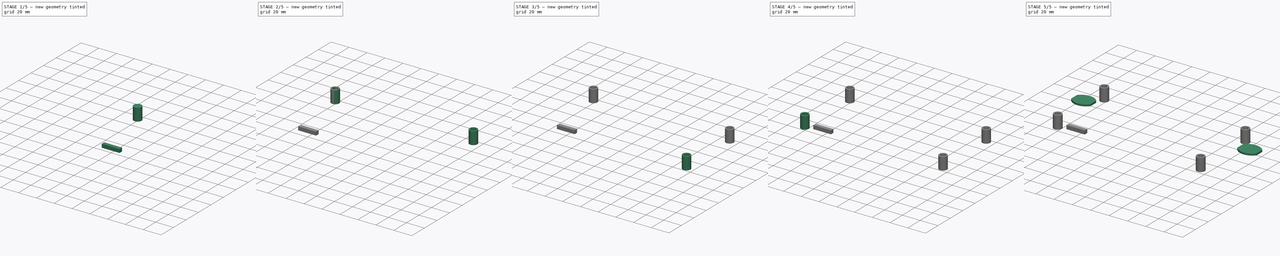
[diagram: build sequence overview — one tinted view per stage of 5, left to right]
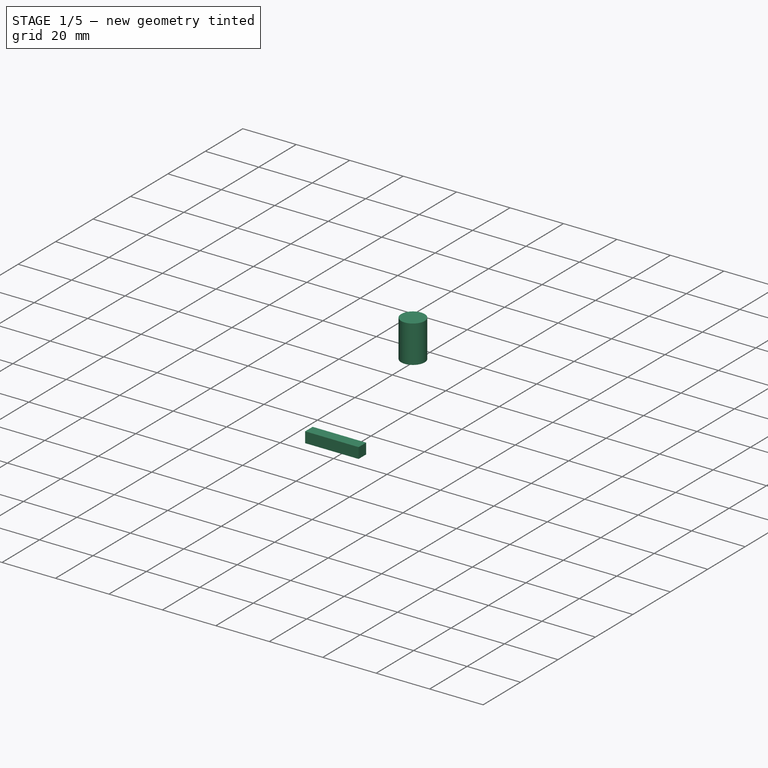
[diagram: stage 1 of 5 — iso view after this stage's code; geometry added in this stage tinted green]
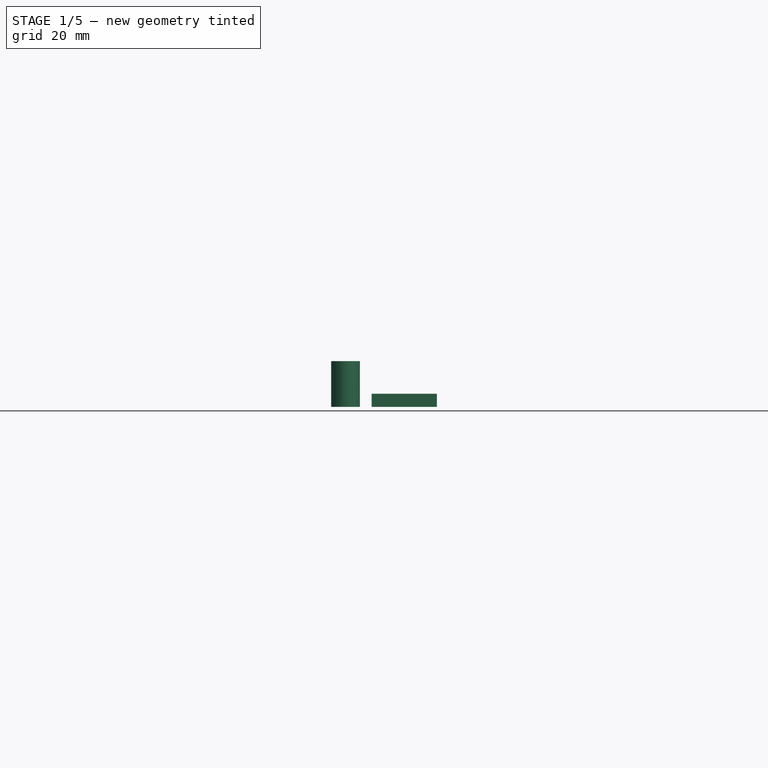
[diagram: stage 1 of 5 — front view after this stage's code; geometry added in this stage tinted green]
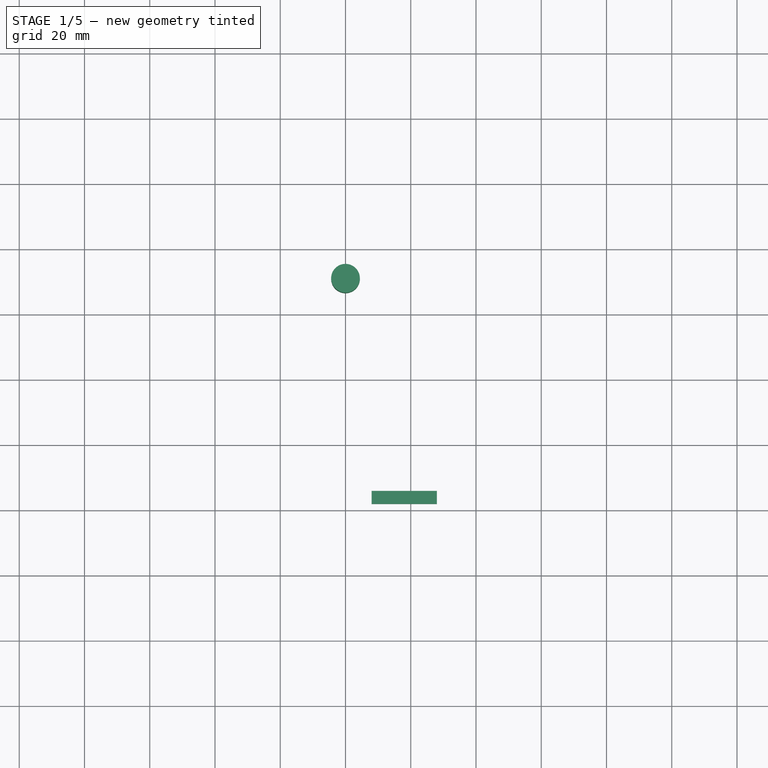
[diagram: stage 1 of 5 — top view after this stage's code; geometry added in this stage tinted green]
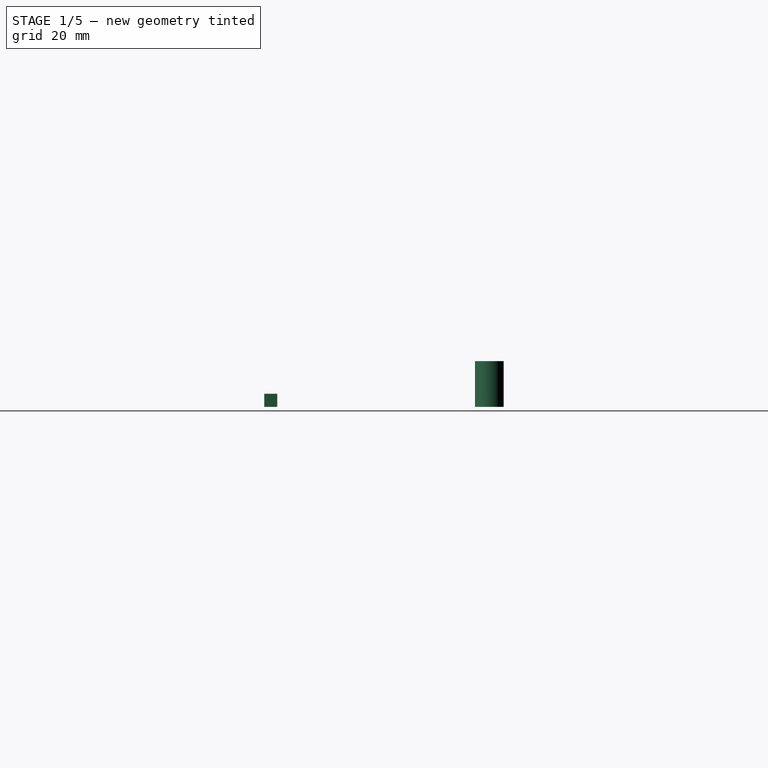
[diagram: stage 1 of 5 — right view after this stage's code; geometry added in this stage tinted green]
FCSTD DOCUMENT  (FreeCAD 0.16R6045 (Git))
Label: project_n_rev2
License: All rights reserved
LicenseURL: http://en.wikipedia.org/wiki/All_rights_reserved
objects: Part::Cylinder×8, Sketcher::SketchObject×5, Part::Cut×4, PartDesign::Pad×2, Part::MultiFuse×2, Part::Box×1
note: 24 computed .brp shape members not serialized (recipe doc carries the construction recipe); baked Part::Feature solids carry a one-line shape summary decoded from their .brp

FEATURE [Part::Cylinder] Cylinder003
  Angle = 360
  Height = 14
  Placement = pos=(0,71,0) rot=(0,0,1;0rad)
  Radius = 4.4
FEATURE [Part::Cylinder] Cylinder007
  Angle = 360
  Height = 12
  Placement = pos=(0,71,2) rot=(0,0,1;0rad)
  Radius = 3
FEATURE [Part::Box] Box001  label="Cube001"
  Height = 4
  Length = 20
  Placement = pos=(8,2,0) rot=(0,0,1;0rad)
  Width = 4
FEATURE [Sketcher::SketchObject] Sketch004
  Placement = pos=(0,0,0) rot=(1,0,0;3.14159rad)
  sketch-geometry (38):
    g0: LineSegment StartX=-43.3507 StartY=-6.8712 StartZ=0 EndX=-28.7131 EndY=-67.7959 EndZ=0
    g1: LineSegment StartX=199.163 StartY=-6.8694 StartZ=0 EndX=184.746 EndY=-68.0609 EndZ=0
    g2: ArcOfCircle CenterX=-37.936 CenterY=-5.56776 CenterZ=0 NormalX=0 NormalY=0 NormalZ=1 Radius=5.56941 StartAngle=1.57075 EndAngle=3.37782
    g3: ArcOfCircle CenterX=193.736 CenterY=-5.5753 CenterZ=0 NormalX=0 NormalY=0 NormalZ=1 Radius=5.57903 StartAngle=6.0491 EndAngle=7.85398
    g4: ArcOfCircle CenterX=78.2135 CenterY=90.7587 CenterZ=0 NormalX=0 NormalY=0 NormalZ=1 Radius=191.24 StartAngle=4.11906 EndAngle=4.197
    g5: LineSegment StartX=-4.40208 StartY=0 StartZ=0 EndX=-4.40208 EndY=-25 EndZ=0
    g6: LineSegment StartX=-4.40208 StartY=-25 StartZ=0 EndX=-6 EndY=-25 EndZ=0
    g7: LineSegment StartX=-6 StartY=-25 StartZ=0 EndX=-6 EndY=0.000261594 EndZ=0
    g8: LineSegment StartX=4.40547 StartY=0 StartZ=0 EndX=4.40547 EndY=-25 EndZ=0
    g9: LineSegment StartX=4.40547 StartY=-25 StartZ=0 EndX=6 EndY=-25 EndZ=0
    g10: LineSegment StartX=6 StartY=-25 StartZ=0 EndX=6 EndY=0.000143702 EndZ=0
    g11: LineSegment StartX=-6 StartY=0.000261594 StartZ=0 EndX=-37.9357 EndY=0.00165396 EndZ=0
    g12: LineSegment StartX=151.442 StartY=0 StartZ=0 EndX=151.442 EndY=-25 EndZ=0
    g13: LineSegment StartX=151.442 StartY=-25 StartZ=0 EndX=150 EndY=-25 EndZ=0
    g14: LineSegment StartX=150 StartY=-25 StartZ=0 EndX=150 EndY=0.00359255 EndZ=0
    g15: LineSegment StartX=160.216 StartY=0 StartZ=0 EndX=160.216 EndY=-25 EndZ=0
    g16: LineSegment StartX=160.216 StartY=-25 StartZ=0 EndX=161.882 EndY=-25 EndZ=0
    g17: LineSegment StartX=161.882 StartY=-25 StartZ=0 EndX=161.882 EndY=0.00373137 EndZ=0
    g18: LineSegment StartX=150 StartY=0.00359255 StartZ=0 EndX=6 EndY=0.000143702 EndZ=0
    g19: LineSegment StartX=161.882 StartY=0.00373137 StartZ=0 EndX=193.736 EndY=0.00373137 EndZ=0
    g20: LineSegment StartX=-14.2083 StartY=-76.6662 StartZ=0 EndX=14.3393 EndY=-55.4777 EndZ=0
    g21: LineSegment StartX=-16.0434 StartY=-75.64 StartZ=0 EndX=13.1986 EndY=-53.9388 EndZ=0
    g22: LineSegment StartX=13.1986 StartY=-53.9388 StartZ=0 EndX=14.3393 EndY=-55.4777 EndZ=0
    g23: LineSegment StartX=-5.18895 StartY=-81.3369 StartZ=0 EndX=19.6475 EndY=-62.3862 EndZ=0
    g24: LineSegment StartX=19.6475 StartY=-62.3862 StartZ=0 EndX=20.9006 EndY=-64.0769 EndZ=0
    g25: LineSegment StartX=20.9006 StartY=-64.0769 StartZ=0 EndX=-3.03647 EndY=-82.3636 EndZ=0
    g26: ArcOfCircle CenterX=78.2135 CenterY=90.7587 CenterZ=0 NormalX=0 NormalY=0 NormalZ=1 Radius=191.24 StartAngle=4.208 EndAngle=4.26111
    g27: ArcOfCircle CenterX=78.2135 CenterY=90.7587 CenterZ=0 NormalX=0 NormalY=0 NormalZ=1 Radius=191.24 StartAngle=4.27358 EndAngle=5.14801
    g28: LineSegment StartX=169.291 StartY=-77.4014 StartZ=0 EndX=142.294 EndY=-54.4443 EndZ=0
    g29: LineSegment StartX=142.294 StartY=-54.4443 StartZ=0 EndX=143.278 EndY=-53.2272 EndZ=0
    g30: LineSegment StartX=143.278 StartY=-53.2272 StartZ=0 EndX=170.76 EndY=-76.5975 EndZ=0
    g31: LineSegment StartX=160.7 StartY=-81.7776 StartZ=0 EndX=136.551 EndY=-61.2415 EndZ=0
    g32: LineSegment StartX=136.551 StartY=-61.2415 StartZ=0 EndX=135.384 EndY=-62.6144 EndZ=0
    g33: LineSegment StartX=135.384 StartY=-62.6144 StartZ=0 EndX=158.911 EndY=-82.6217 EndZ=0
    g34: ArcOfCircle CenterX=78.2135 CenterY=90.7587 CenterZ=0 NormalX=0 NormalY=0 NormalZ=1 Radius=191.24 StartAngle=5.15835 EndAngle=5.20877
    g35: ArcOfCircle CenterX=78.2135 CenterY=90.7587 CenterZ=0 NormalX=0 NormalY=0 NormalZ=1 Radius=191.24 StartAngle=5.21752 EndAngle=5.30323
    g36: LineSegment StartX=151.442 StartY=0 StartZ=0 EndX=160.216 EndY=0 EndZ=0
    g37: LineSegment StartX=-4.40208 StartY=0 StartZ=0 EndX=4.40547 EndY=0 EndZ=0
  constraints (47):
    c: Coincident(g4,g0)
    c: Coincident(g35,g1)
    c: Coincident(g5,g6)
    c: Coincident(g6,g7)
    c: Coincident(g8,g9)
    c: Coincident(g9,g10)
    c: Coincident(g12,g13)
    c: Coincident(g13,g14)
    c: Coincident(g15,g16)
    c: Coincident(g16,g17)
    c: Coincident(g22,g20)
    c: Coincident(g24,g23)
    c: Coincident(g25,g24)
    c: Coincident(g21,g22)
    c: PointOnObject(g23,g4)
    c: PointOnObject(g25,g4)
    c: Coincident(g4,g21)
    c: Coincident(g26,g20)
    c: Coincident(g4,g26)
    c: Coincident(g26,g27)
    c: PointOnObject(g28,g27)
    c: Coincident(g29,g28)
    c: Coincident(g30,g29)
    c: PointOnObject(g30,g27)
    c: Coincident(g32,g31)
    c: Coincident(g27,g33)
    c: Coincident(g34,g31)
    c: Coincident(g27,g34)
    c: Coincident(g34,g35)
    c: Coincident(g10,g18)
    c: Coincident(g17,g19)
    c: Coincident(g32,g33)
    c: Coincident(g7,g11)
    c: Coincident(g18,g14)
    c: Coincident(g23,g26)
    c: Coincident(g25,g27)
    c: Coincident(g28,g34)
    c: Coincident(g30,g35)
    c: Coincident(g0,g2)
    c: Coincident(g3,g1)
    c: Coincident(g2,g11)
    c: Coincident(g3,g19)
    c: Coincident(g36,g12)
    c: Coincident(g36,g15)
    c: Coincident(g37,g5)
    c: Coincident(g37,g8)
    c: Horizontal(g37)
FEATURE [Sketcher::SketchObject] Sketch005
  Placement = pos=(0,0,0) rot=(1,0,0;3.14159rad)
  sketch-geometry (72):
    g0: LineSegment StartX=-40.3288 StartY=-7.10703 StartZ=0 EndX=-35.0657 EndY=-28.4659 EndZ=0
    g1: LineSegment StartX=196.107 StartY=-6.97591 StartZ=0 EndX=191.107 EndY=-28.465 EndZ=0
    g2: ArcOfCircle CenterX=-36.5908 CenterY=-6.71486 CenterZ=0 NormalX=0 NormalY=0 NormalZ=1 Radius=3.75849 StartAngle=1.95648 EndAngle=3.24613
    g3: ArcOfCircle CenterX=192.413 CenterY=-6.58648 CenterZ=0 NormalX=0 NormalY=0 NormalZ=1 Radius=3.7143 StartAngle=6.17815 EndAngle=7.68726
    g4: ArcOfCircle CenterX=81.0795 CenterY=91.0792 CenterZ=0 NormalX=0 NormalY=0 NormalZ=1 Radius=190.004 StartAngle=4.11487 EndAngle=4.18002
    g5: LineSegment StartX=-9 StartY=-28.4659 StartZ=0 EndX=-9 EndY=-3.31055 EndZ=0
    g6: LineSegment StartX=9 StartY=-28.4589 StartZ=0 EndX=9 EndY=-3 EndZ=0
    g7: LineSegment StartX=-9 StartY=-3.31055 StartZ=0 EndX=-38.0047 EndY=-3.23246 EndZ=0
    g8: LineSegment StartX=147 StartY=-28.4589 StartZ=0 EndX=147 EndY=-3 EndZ=0
    g9: LineSegment StartX=165 StartY=-28.465 StartZ=0 EndX=165.046 EndY=-3 EndZ=0
    g10: LineSegment StartX=147 StartY=-3 StartZ=0 EndX=9 EndY=-3 EndZ=0
    g11: LineSegment StartX=165.046 StartY=-3 StartZ=0 EndX=193.03 EndY=-2.92369 EndZ=0
    g12: LineSegment StartX=-15.3622 StartY=-72.6298 StartZ=0 EndX=10.0002 EndY=-53.5322 EndZ=0
    g13: LineSegment StartX=19.2059 StartY=-70.674 StartZ=0 EndX=4.63731 EndY=-82.8698 EndZ=0
    g14: ArcOfCircle CenterX=77.8731 CenterY=91.3643 CenterZ=0 NormalX=0 NormalY=0 NormalZ=1 Radius=189 StartAngle=4.31448 EndAngle=5.12279
    g15: LineSegment StartX=148.633 StartY=-54.7292 StartZ=0 EndX=170.006 EndY=-73.6583 EndZ=0
    g16: LineSegment StartX=139.531 StartY=-70.674 StartZ=0 EndX=153.279 EndY=-81.9415 EndZ=0
    g17: ArcOfCircle CenterX=80.6539 CenterY=92.1113 CenterZ=0 NormalX=0 NormalY=0 NormalZ=1 Radius=188.317 StartAngle=5.20676 EndAngle=5.28236
    g18: LineSegment StartX=-43.3507 StartY=-6.8712 StartZ=0 EndX=-28.7131 EndY=-67.7959 EndZ=0
    g19: LineSegment StartX=199.163 StartY=-6.8694 StartZ=0 EndX=184.746 EndY=-68.0609 EndZ=0
    g20: ArcOfCircle CenterX=-37.936 CenterY=-5.56776 CenterZ=0 NormalX=0 NormalY=0 NormalZ=1 Radius=5.56941 StartAngle=1.57075 EndAngle=3.37782
    g21: ArcOfCircle CenterX=193.736 CenterY=-5.5753 CenterZ=0 NormalX=0 NormalY=0 NormalZ=1 Radius=5.57903 StartAngle=6.0491 EndAngle=7.85398
    g22: ArcOfCircle CenterX=78.2135 CenterY=90.7587 CenterZ=0 NormalX=0 NormalY=0 NormalZ=1 Radius=191.24 StartAngle=4.11906 EndAngle=4.197
    g23: LineSegment StartX=-4.40208 StartY=0 StartZ=0 EndX=-4.40208 EndY=-25 EndZ=0
    g24: LineSegment StartX=-4.40208 StartY=-25 StartZ=0 EndX=-6 EndY=-25 EndZ=0
    g25: LineSegment StartX=-6 StartY=-25 StartZ=0 EndX=-6 EndY=0.000261594 EndZ=0
    g26: LineSegment StartX=4.40547 StartY=0 StartZ=0 EndX=4.40547 EndY=-25 EndZ=0
    g27: LineSegment StartX=4.40547 StartY=-25 StartZ=0 EndX=6 EndY=-25 EndZ=0
    g28: LineSegment StartX=6 StartY=-25 StartZ=0 EndX=6 EndY=0.000143702 EndZ=0
    g29: LineSegment StartX=-6 StartY=0.000261594 StartZ=0 EndX=-37.9357 EndY=0.00165396 EndZ=0
    g30: LineSegment StartX=151.442 StartY=0 StartZ=0 EndX=151.442 EndY=-25 EndZ=0
    g31: LineSegment StartX=151.442 StartY=-25 StartZ=0 EndX=150 EndY=-25 EndZ=0
    g32: LineSegment StartX=150 StartY=-25 StartZ=0 EndX=150 EndY=0.00359255 EndZ=0
    g33: LineSegment StartX=160.216 StartY=0 StartZ=0 EndX=160.216 EndY=-25 EndZ=0
    g34: LineSegment StartX=160.216 StartY=-25 StartZ=0 EndX=161.882 EndY=-25 EndZ=0
    g35: LineSegment StartX=161.882 StartY=-25 StartZ=0 EndX=161.882 EndY=0.00373137 EndZ=0
    g36: LineSegment StartX=150 StartY=0.00359255 StartZ=0 EndX=6 EndY=0.000143702 EndZ=0
    g37: LineSegment StartX=161.882 StartY=0.00373137 StartZ=0 EndX=193.736 EndY=0.00373137 EndZ=0
    g38: LineSegment StartX=-14.2083 StartY=-76.6662 StartZ=0 EndX=14.3393 EndY=-55.4777 EndZ=0
    g39: LineSegment StartX=-16.0434 StartY=-75.64 StartZ=0 EndX=13.1986 EndY=-53.9388 EndZ=0
    g40: LineSegment StartX=13.1986 StartY=-53.9388 StartZ=0 EndX=14.3393 EndY=-55.4777 EndZ=0
    g41: LineSegment StartX=-5.18895 StartY=-81.3369 StartZ=0 EndX=19.6475 EndY=-62.3862 EndZ=0
    g42: LineSegment StartX=19.6475 StartY=-62.3862 StartZ=0 EndX=20.9006 EndY=-64.0769 EndZ=0
    g43: LineSegment StartX=20.9006 StartY=-64.0769 StartZ=0 EndX=-3.03647 EndY=-82.3636 EndZ=0
    g44: ArcOfCircle CenterX=78.2135 CenterY=90.7587 CenterZ=0 NormalX=0 NormalY=0 NormalZ=1 Radius=191.24 StartAngle=4.208 EndAngle=4.26111
    g45: ArcOfCircle CenterX=78.2135 CenterY=90.7587 CenterZ=0 NormalX=0 NormalY=0 NormalZ=1 Radius=191.24 StartAngle=4.27358 EndAngle=5.14801
    g46: LineSegment StartX=169.291 StartY=-77.4014 StartZ=0 EndX=142.294 EndY=-54.4443 EndZ=0
    g47: LineSegment StartX=142.294 StartY=-54.4443 StartZ=0 EndX=143.278 EndY=-53.2272 EndZ=0
    g48: LineSegment StartX=143.278 StartY=-53.2272 StartZ=0 EndX=170.76 EndY=-76.5975 EndZ=0
    g49: LineSegment StartX=160.7 StartY=-81.7776 StartZ=0 EndX=136.551 EndY=-61.2415 EndZ=0
    g50: LineSegment StartX=136.551 StartY=-61.2415 StartZ=0 EndX=135.384 EndY=-62.6144 EndZ=0
    g51: LineSegment StartX=135.384 StartY=-62.6144 StartZ=0 EndX=158.911 EndY=-82.6217 EndZ=0
    g52: ArcOfCircle CenterX=78.2135 CenterY=90.7587 CenterZ=0 NormalX=0 NormalY=0 NormalZ=1 Radius=191.24 StartAngle=5.15835 EndAngle=5.20877
    g53: ArcOfCircle CenterX=78.2135 CenterY=90.7587 CenterZ=0 NormalX=0 NormalY=0 NormalZ=1 Radius=191.24 StartAngle=5.21752 EndAngle=5.30323
    g54: LineSegment StartX=151.442 StartY=0 StartZ=0 EndX=160.216 EndY=0 EndZ=0
    g55: LineSegment StartX=-4.40208 StartY=0 StartZ=0 EndX=4.40547 EndY=0 EndZ=0
    g56: LineSegment StartX=143.013 StartY=-47.9549 StartZ=0 EndX=127.338 EndY=-64.7036 EndZ=0
    g57: LineSegment StartX=15.7428 StartY=-48.8542 StartZ=0 EndX=29.5247 EndY=-64.7036 EndZ=0
    g58: LineSegment StartX=19.2059 StartY=-70.674 StartZ=0 EndX=139.531 EndY=-70.674 EndZ=0
    g59: LineSegment StartX=29.5247 StartY=-64.7036 StartZ=0 EndX=127.338 EndY=-64.7036 EndZ=0
    g60: LineSegment StartX=-9 StartY=-28.4659 StartZ=0 EndX=-35.0657 EndY=-28.4659 EndZ=0
    g61: LineSegment StartX=9 StartY=-28.4589 StartZ=0 EndX=147 EndY=-28.4589 EndZ=0
    g62: LineSegment StartX=165 StartY=-28.465 StartZ=0 EndX=191.107 EndY=-28.465 EndZ=0
    g63: LineSegment StartX=-33.6674 StartY=-34.1409 StartZ=0 EndX=10.0002 EndY=-34.1409 EndZ=0
    g64: LineSegment StartX=10.0002 StartY=-34.1409 StartZ=0 EndX=10.0002 EndY=-53.5322 EndZ=0
    g65: LineSegment StartX=15.7428 StartY=-34.1979 StartZ=0 EndX=15.7428 EndY=-48.8542 EndZ=0
    g66: LineSegment StartX=143.013 StartY=-47.9549 StartZ=0 EndX=143.013 EndY=-34.1409 EndZ=0
    g67: LineSegment StartX=148.633 StartY=-34.1409 StartZ=0 EndX=148.633 EndY=-54.7292 EndZ=0
    g68: LineSegment StartX=15.7428 StartY=-34.1409 StartZ=0 EndX=143.013 EndY=-34.1409 EndZ=0
    g69: LineSegment StartX=148.633 StartY=-34.1409 StartZ=0 EndX=189.786 EndY=-34.1409 EndZ=0
    g70: LineSegment StartX=-33.6674 StartY=-34.1409 StartZ=0 EndX=-25.8162 EndY=-66.0035 EndZ=0
    g71: LineSegment StartX=189.786 StartY=-34.1409 StartZ=0 EndX=182.271 EndY=-66.4365 EndZ=0
  constraints (95):
    c: Coincident(g4,g70)
    c: Coincident(g17,g71)
    c: PointOnObject(g13,g4)
    c: Coincident(g4,g12)
    c: PointOnObject(g15,g14)
    c: Coincident(g14,g16)
    c: Coincident(g6,g10)
    c: Coincident(g9,g11)
    c: Coincident(g5,g7)
    c: Coincident(g10,g8)
    c: Coincident(g13,g14)
    c: Coincident(g15,g17)
    c: Coincident(g0,g2)
    c: Coincident(g3,g1)
    c: Coincident(g2,g7)
    c: Coincident(g3,g11)
    c: Coincident(g22,g18)
    c: Coincident(g53,g19)
    c: Coincident(g23,g24)
    c: Coincident(g24,g25)
    c: Coincident(g26,g27)
    c: Coincident(g27,g28)
    c: Coincident(g30,g31)
    c: Coincident(g31,g32)
    c: Coincident(g33,g34)
    c: Coincident(g34,g35)
    c: Coincident(g40,g38)
    c: Coincident(g42,g41)
    c: Coincident(g43,g42)
    c: Coincident(g39,g40)
    c: PointOnObject(g41,g22)
    c: PointOnObject(g43,g22)
    c: Coincident(g22,g39)
    c: Coincident(g44,g38)
    c: Coincident(g22,g44)
    c: Coincident(g44,g45)
    c: PointOnObject(g46,g45)
    c: Coincident(g47,g46)
    c: Coincident(g48,g47)
    c: PointOnObject(g48,g45)
    c: Coincident(g50,g49)
    c: Coincident(g45,g51)
    c: Coincident(g52,g49)
    c: Coincident(g45,g52)
    c: Coincident(g52,g53)
    c: Coincident(g28,g36)
    c: Coincident(g35,g37)
    c: Coincident(g50,g51)
    c: Coincident(g25,g29)
    c: Coincident(g36,g32)
    c: Coincident(g41,g44)
    c: Coincident(g43,g45)
    c: Coincident(g46,g52)
    c: Coincident(g48,g53)
    c: Coincident(g18,g20)
    c: Coincident(g21,g19)
    c: Coincident(g20,g29)
    c: Coincident(g21,g37)
    c: Coincident(g54,g30)
    c: Coincident(g54,g33)
    c: Coincident(g55,g23)
    c: Coincident(g55,g26)
    c: Horizontal(g55)
    c: Horizontal(g58)
    c: Coincident(g59,g57)
    c: Coincident(g59,g56)
    c: Horizontal(g59)
    c: Coincident(g13,g58)
    c: Coincident(g16,g58)
    c: Coincident(g60,g5)
    c: Horizontal(g60)
    c: Coincident(g61,g6)
    c: Coincident(g61,g8)
    c: Horizontal(g61)
    c: Coincident(g62,g9)
    c: Horizontal(g62)
    c: Horizontal(g63)
    c: Vertical(g64)
    c: Coincident(g65,g57)
    c: Vertical(g65)
    c: Coincident(g66,g56)
    c: Vertical(g67)
    c: Coincident(g63,g64)
    c: Tangent(g63,g68)
    c: Coincident(g12,g64)
    c: Tangent(g68,g69)
    c: Coincident(g15,g67)
    c: Coincident(g0,g60)
    c: Coincident(g70,g63)
    c: Coincident(g1,g62)
    c: Coincident(g71,g69)
    c: Coincident(g67,g69)
    c: Coincident(g65,g68)
    c: Coincident(g66,g68)
    c: Coincident(g66,g56)
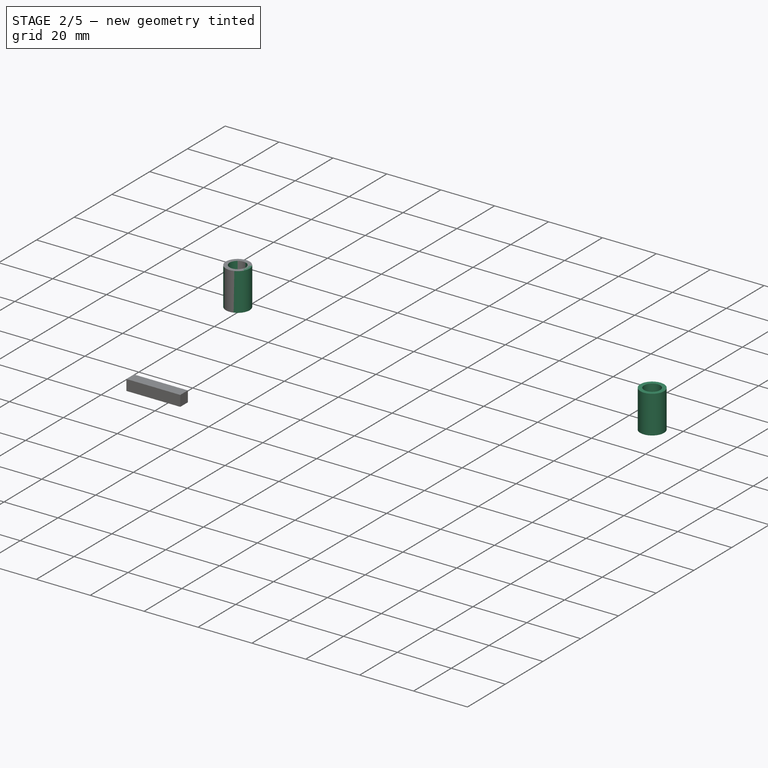
[diagram: stage 2 of 5 — iso view after this stage's code; geometry added in this stage tinted green]
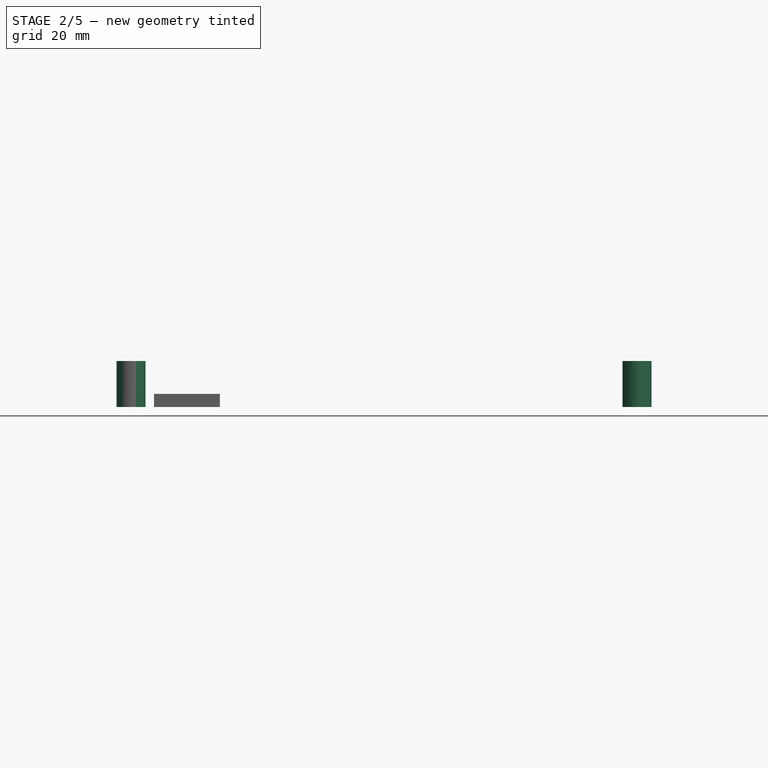
[diagram: stage 2 of 5 — front view after this stage's code; geometry added in this stage tinted green]
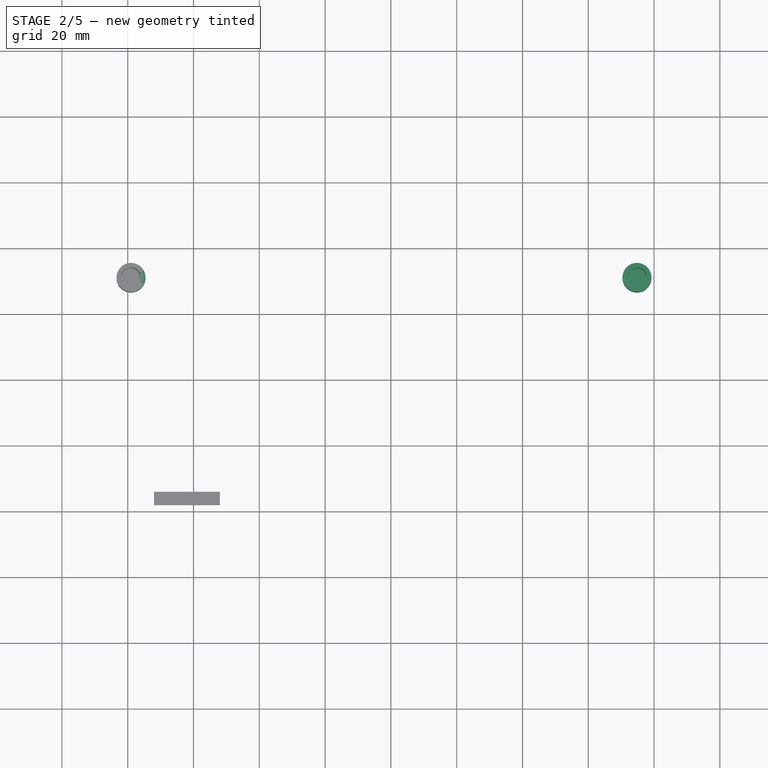
[diagram: stage 2 of 5 — top view after this stage's code; geometry added in this stage tinted green]
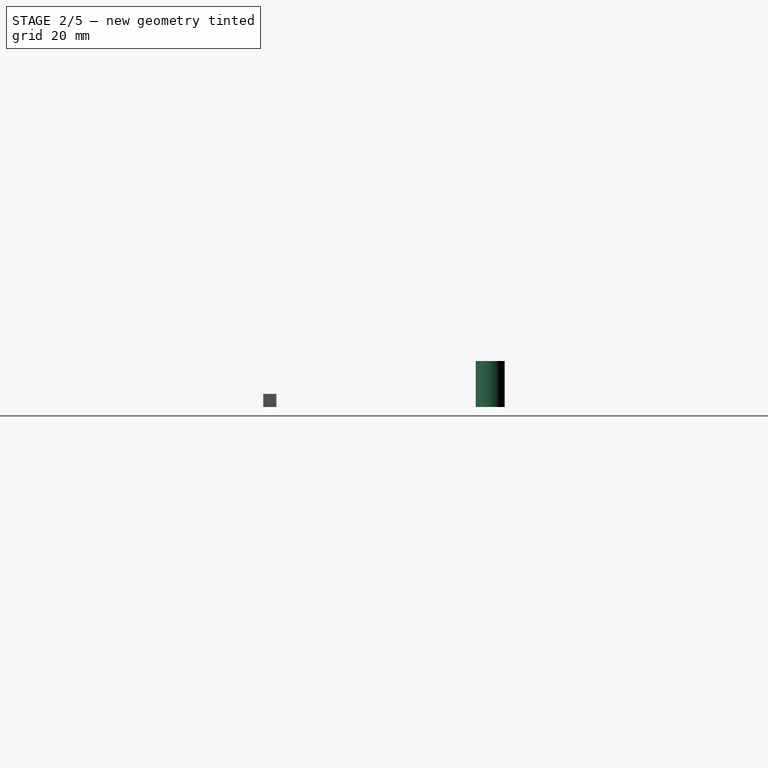
[diagram: stage 2 of 5 — right view after this stage's code; geometry added in this stage tinted green]
FEATURE [Part::Cylinder] Cylinder002
  Angle = 360
  Height = 14
  Placement = pos=(155.8,71,0) rot=(0,0,1;0rad)
  Radius = 4.4
FEATURE [Part::Cylinder] Cylinder006
  Angle = 360
  Height = 12
  Placement = pos=(155.8,71,2) rot=(0,0,1;0rad)
  Radius = 3
FEATURE [Part::Cut] Cut002
  Base = -> Cylinder002
  Placement = pos=(-1,0,0) rot=(0,0,1;0rad)
  Tool = -> Cylinder006
FEATURE [Part::Cut] Cut003
  Base = -> Cylinder003
  Placement = pos=(1,0,0) rot=(0,0,1;0rad)
  Tool = -> Cylinder007
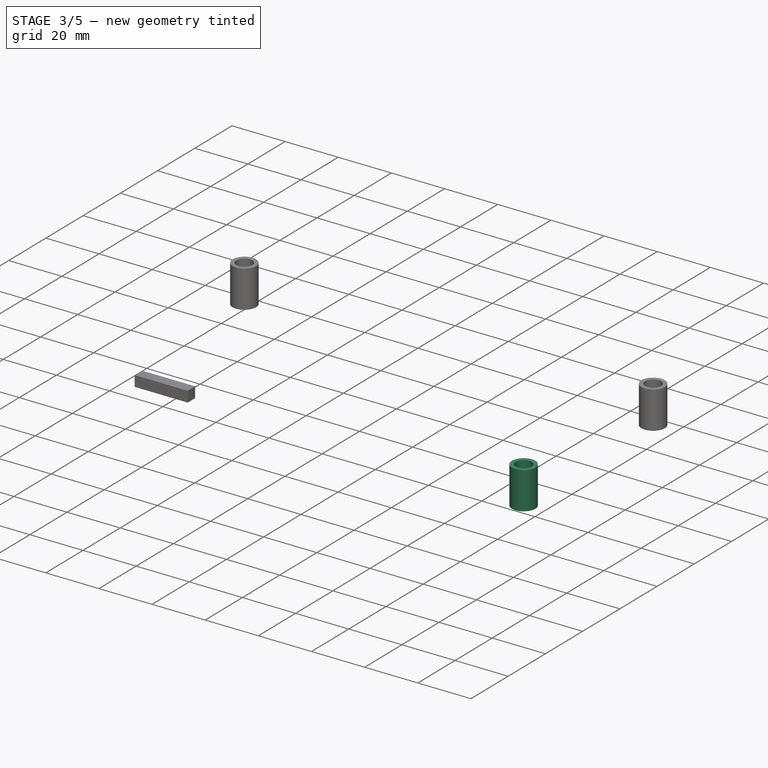
[diagram: stage 3 of 5 — iso view after this stage's code; geometry added in this stage tinted green]
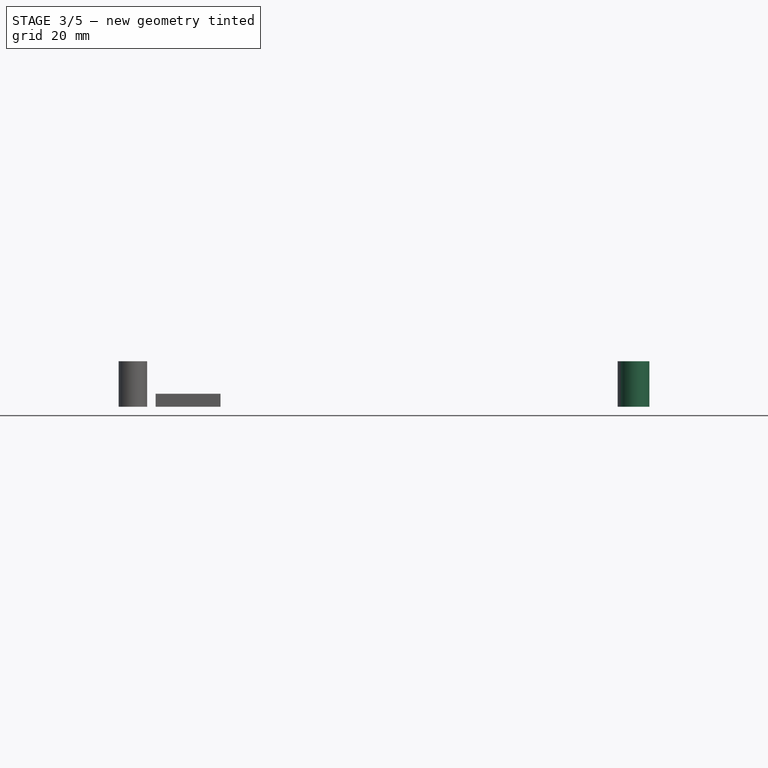
[diagram: stage 3 of 5 — front view after this stage's code; geometry added in this stage tinted green]
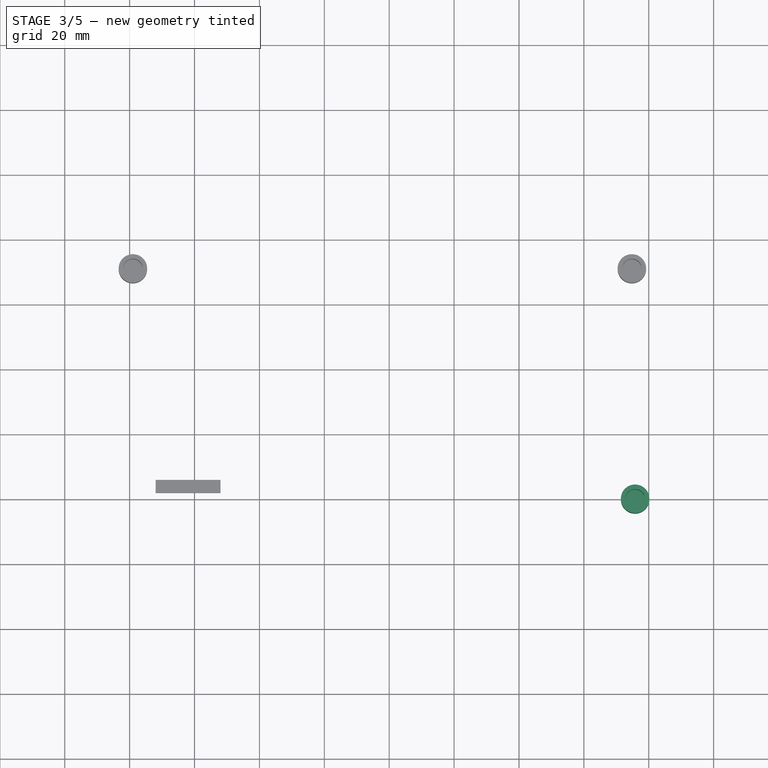
[diagram: stage 3 of 5 — top view after this stage's code; geometry added in this stage tinted green]
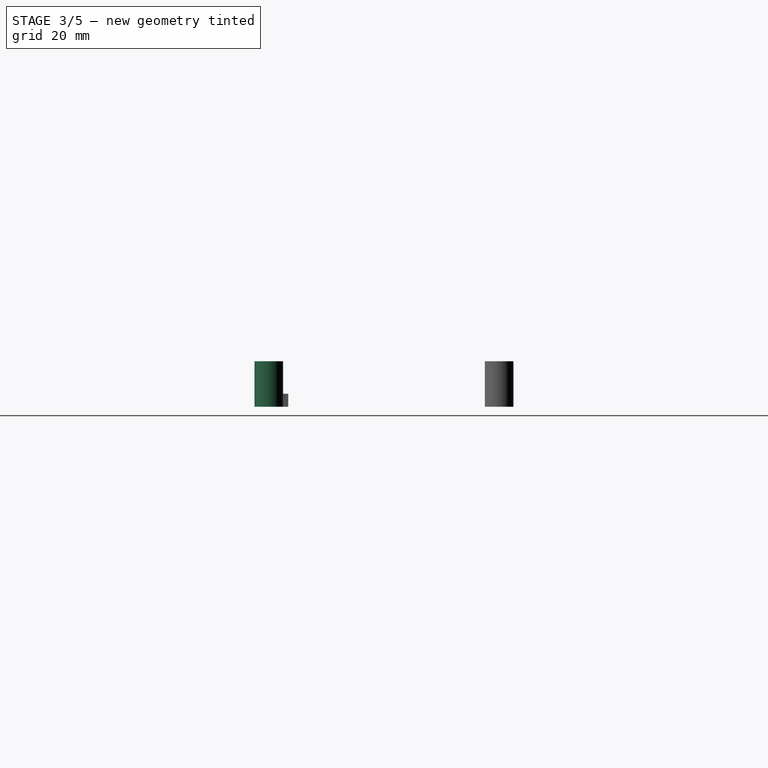
[diagram: stage 3 of 5 — right view after this stage's code; geometry added in this stage tinted green]
FEATURE [Part::Cylinder] Cylinder001
  Angle = 360
  Height = 14
  Placement = pos=(155.8,0,0) rot=(0,0,1;0rad)
  Radius = 4.4
FEATURE [Part::Cylinder] Cylinder005
  Angle = 360
  Height = 12
  Placement = pos=(155.8,0,2) rot=(0,0,1;0rad)
  Radius = 3
FEATURE [Part::Cut] Cut001
  Base = -> Cylinder001
  Tool = -> Cylinder005
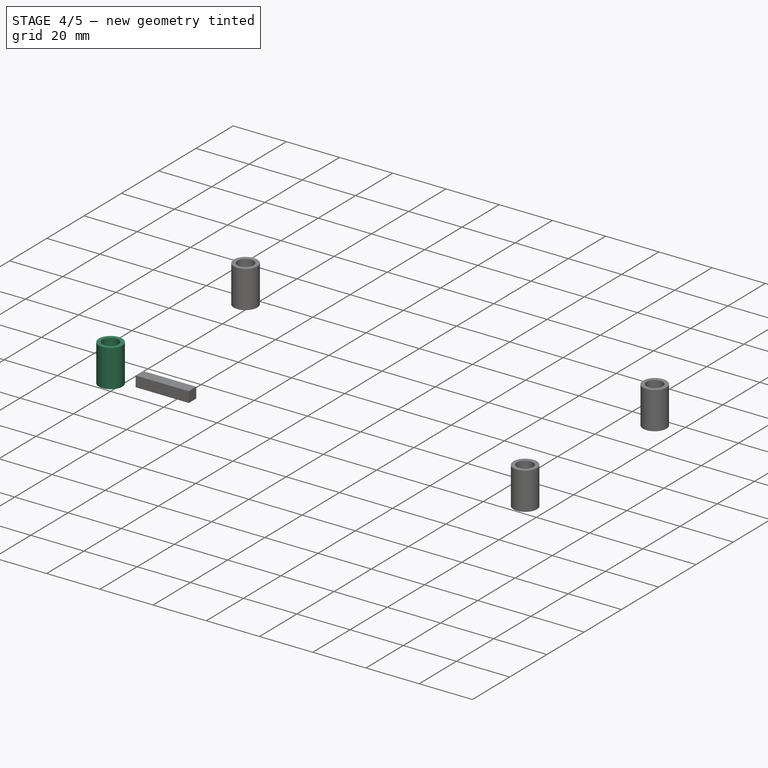
[diagram: stage 4 of 5 — iso view after this stage's code; geometry added in this stage tinted green]
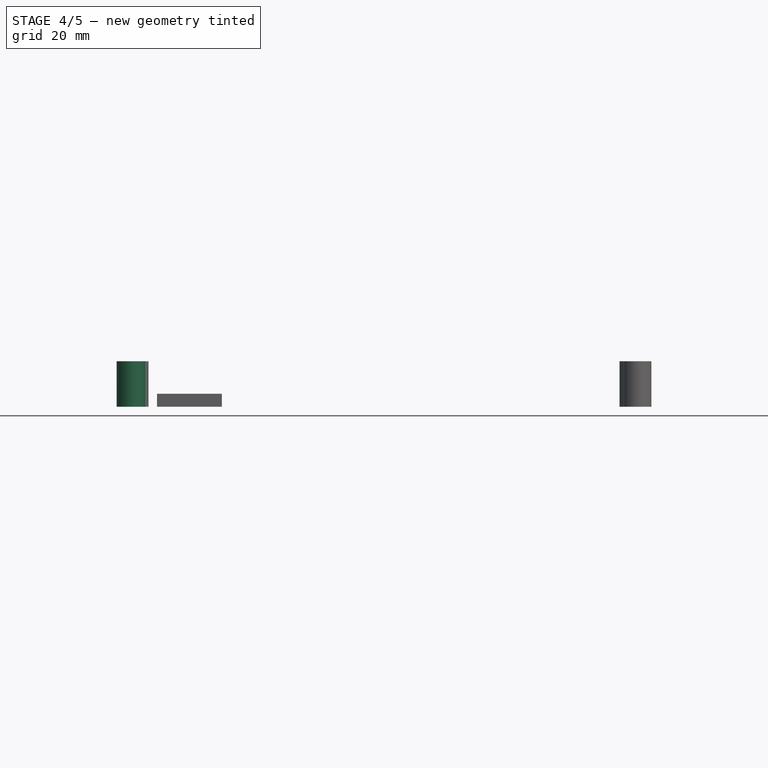
[diagram: stage 4 of 5 — front view after this stage's code; geometry added in this stage tinted green]
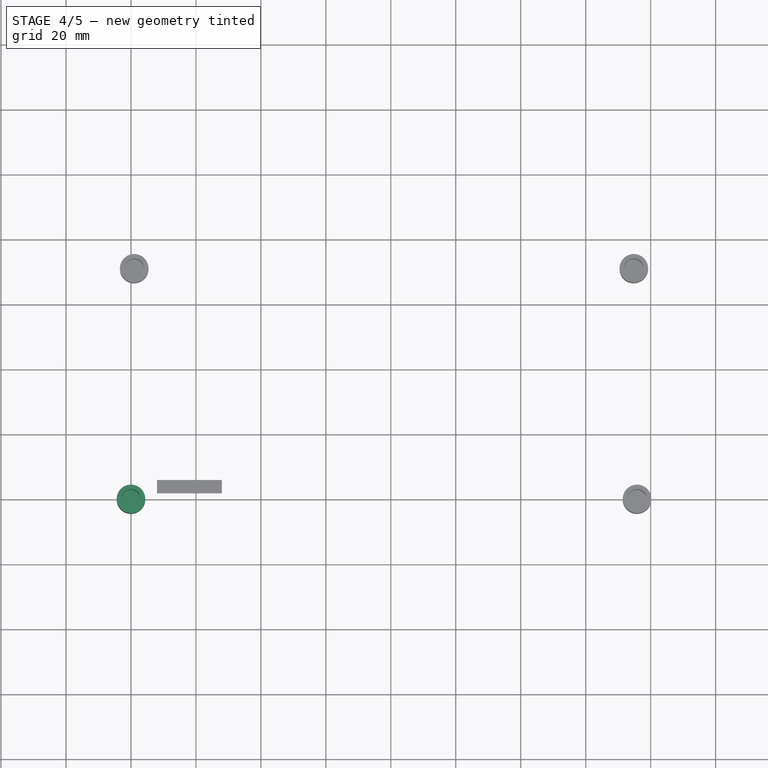
[diagram: stage 4 of 5 — top view after this stage's code; geometry added in this stage tinted green]
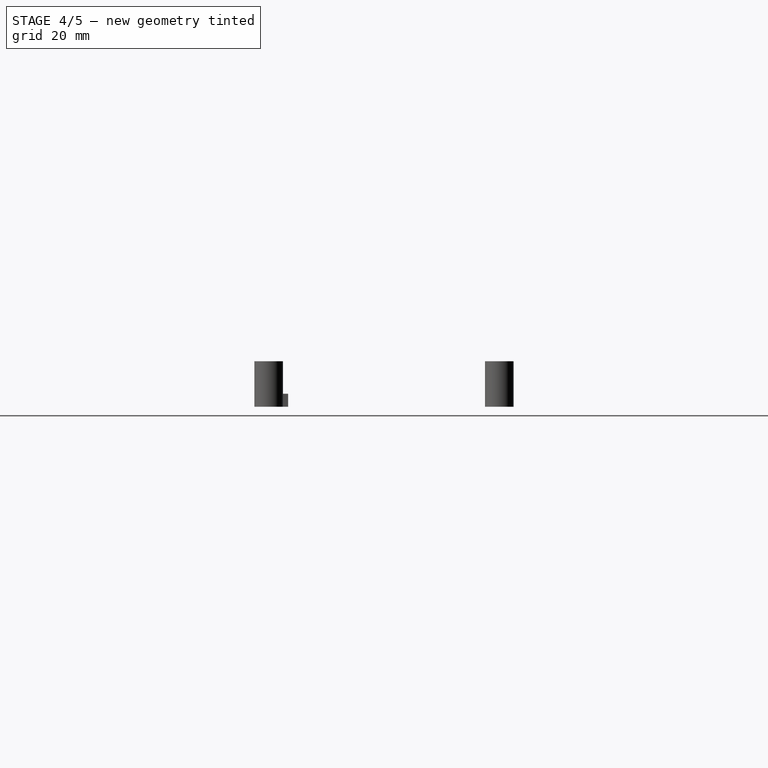
[diagram: stage 4 of 5 — right view after this stage's code; geometry added in this stage tinted green]
FEATURE [Part::Cylinder] Cylinder
  Angle = 360
  Height = 14
  Radius = 4.4
FEATURE [Part::Cylinder] Cylinder004
  Angle = 360
  Height = 12
  Placement = pos=(0,0,2) rot=(0,0,1;0rad)
  Radius = 3
FEATURE [Part::Cut] Cut
  Base = -> Cylinder
  Tool = -> Cylinder004
FEATURE [Part::MultiFuse] Fusion001
  Shapes = -> [Cut,Cut001,Cut002,Cut003]
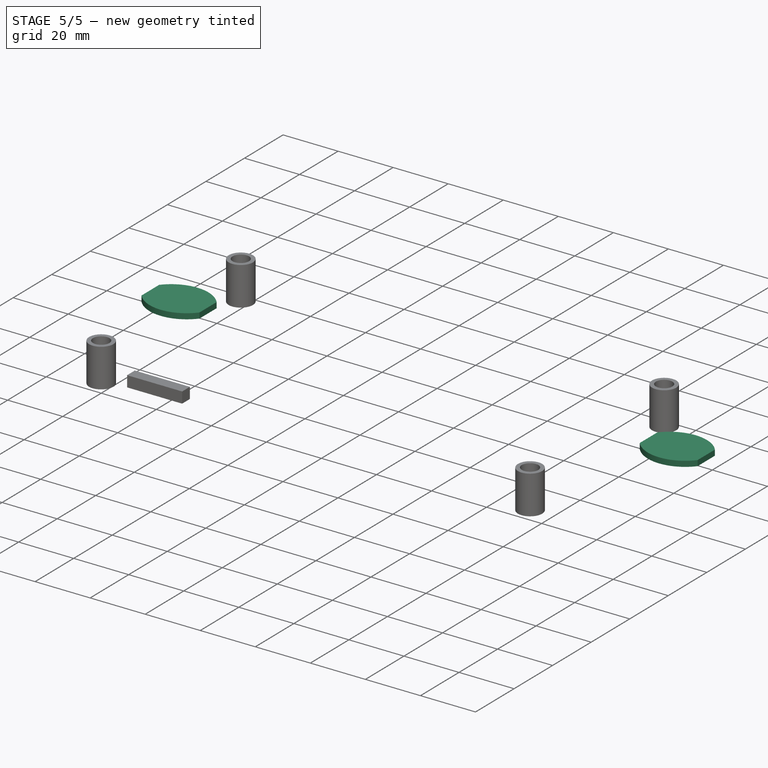
[diagram: stage 5 of 5 — iso view after this stage's code; geometry added in this stage tinted green]
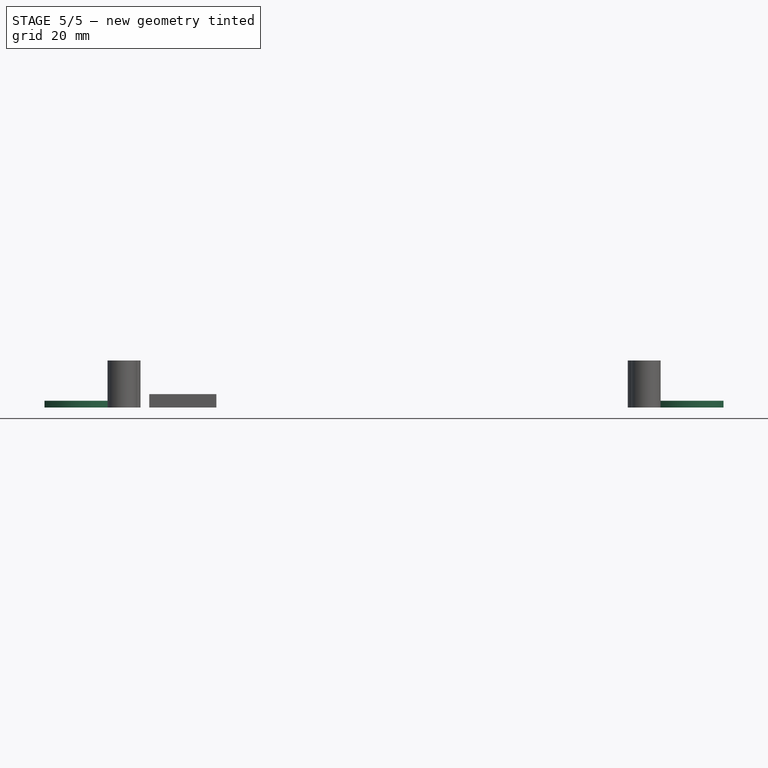
[diagram: stage 5 of 5 — front view after this stage's code; geometry added in this stage tinted green]
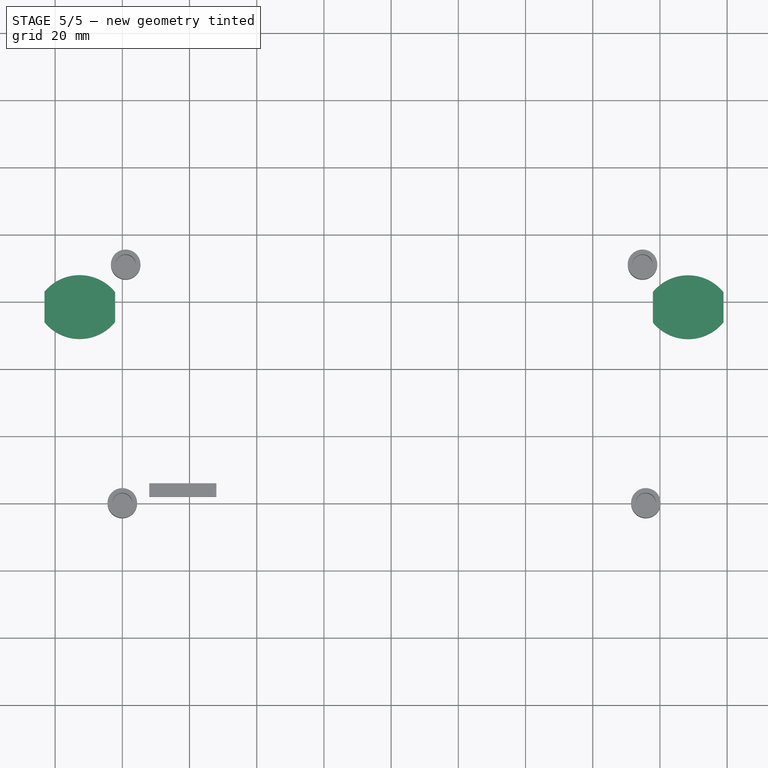
[diagram: stage 5 of 5 — top view after this stage's code; geometry added in this stage tinted green]
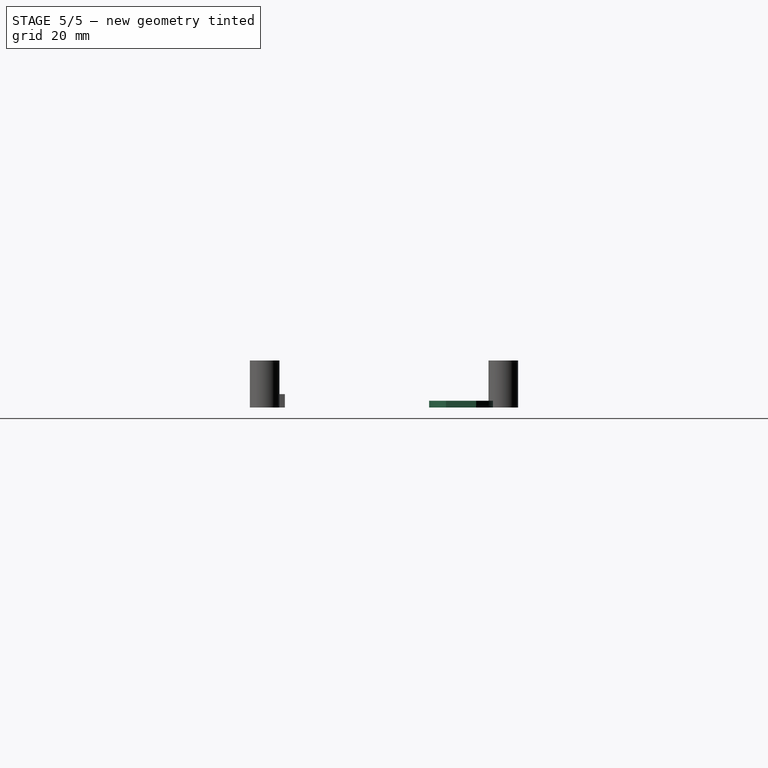
[diagram: stage 5 of 5 — right view after this stage's code; geometry added in this stage tinted green]
FEATURE [Sketcher::SketchObject] Sketch
  Placement = pos=(0,0,0) rot=(1,0,0;3.14159rad)
  sketch-geometry (38):
    g0: LineSegment StartX=-43.3507 StartY=-6.8712 StartZ=0 EndX=-28.7131 EndY=-67.7959 EndZ=0
    g1: LineSegment StartX=199.163 StartY=-6.8694 StartZ=0 EndX=184.746 EndY=-68.0609 EndZ=0
    g2: ArcOfCircle CenterX=-37.936 CenterY=-5.56776 CenterZ=0 NormalX=0 NormalY=0 NormalZ=1 Radius=5.56941 StartAngle=1.57075 EndAngle=3.37782
    g3: ArcOfCircle CenterX=193.736 CenterY=-5.5753 CenterZ=0 NormalX=0 NormalY=0 NormalZ=1 Radius=5.57903 StartAngle=6.0491 EndAngle=7.85398
    g4: ArcOfCircle CenterX=78.2135 CenterY=90.7587 CenterZ=0 NormalX=0 NormalY=0 NormalZ=1 Radius=191.24 StartAngle=4.11906 EndAngle=4.197
    g5: LineSegment StartX=-4.40208 StartY=0 StartZ=0 EndX=-4.40208 EndY=-25 EndZ=0
    g6: LineSegment StartX=-4.40208 StartY=-25 StartZ=0 EndX=-6 EndY=-25 EndZ=0
    g7: LineSegment StartX=-6 StartY=-25 StartZ=0 EndX=-6 EndY=0.000261594 EndZ=0
    g8: LineSegment StartX=4.40547 StartY=0 StartZ=0 EndX=4.40547 EndY=-25 EndZ=0
    g9: LineSegment StartX=4.40547 StartY=-25 StartZ=0 EndX=6 EndY=-25 EndZ=0
    g10: LineSegment StartX=6 StartY=-25 StartZ=0 EndX=6 EndY=0.000143702 EndZ=0
    g11: LineSegment StartX=-6 StartY=0.000261594 StartZ=0 EndX=-37.9357 EndY=0.00165396 EndZ=0
    g12: LineSegment StartX=151.442 StartY=0 StartZ=0 EndX=151.442 EndY=-25 EndZ=0
    g13: LineSegment StartX=151.442 StartY=-25 StartZ=0 EndX=150 EndY=-25 EndZ=0
    g14: LineSegment StartX=150 StartY=-25 StartZ=0 EndX=150 EndY=0.00359255 EndZ=0
    g15: LineSegment StartX=160.216 StartY=0 StartZ=0 EndX=160.216 EndY=-25 EndZ=0
    g16: LineSegment StartX=160.216 StartY=-25 StartZ=0 EndX=161.882 EndY=-25 EndZ=0
    g17: LineSegment StartX=161.882 StartY=-25 StartZ=0 EndX=161.882 EndY=0.00373137 EndZ=0
    g18: LineSegment StartX=150 StartY=0.00359255 StartZ=0 EndX=6 EndY=0.000143702 EndZ=0
    g19: LineSegment StartX=161.882 StartY=0.00373137 StartZ=0 EndX=193.736 EndY=0.00373137 EndZ=0
    g20: LineSegment StartX=-14.2083 StartY=-76.6662 StartZ=0 EndX=14.3393 EndY=-55.4777 EndZ=0
    g21: LineSegment StartX=-16.0434 StartY=-75.64 StartZ=0 EndX=13.1986 EndY=-53.9388 EndZ=0
    g22: LineSegment StartX=13.1986 StartY=-53.9388 StartZ=0 EndX=14.3393 EndY=-55.4777 EndZ=0
    g23: LineSegment StartX=-5.18895 StartY=-81.3369 StartZ=0 EndX=19.6475 EndY=-62.3862 EndZ=0
    g24: LineSegment StartX=19.6475 StartY=-62.3862 StartZ=0 EndX=20.9006 EndY=-64.0769 EndZ=0
    g25: LineSegment StartX=20.9006 StartY=-64.0769 StartZ=0 EndX=-3.03647 EndY=-82.3636 EndZ=0
    g26: ArcOfCircle CenterX=78.2135 CenterY=90.7587 CenterZ=0 NormalX=0 NormalY=0 NormalZ=1 Radius=191.24 StartAngle=4.208 EndAngle=4.26111
    g27: ArcOfCircle CenterX=78.2135 CenterY=90.7587 CenterZ=0 NormalX=0 NormalY=0 NormalZ=1 Radius=191.24 StartAngle=4.27358 EndAngle=5.14801
    g28: LineSegment StartX=169.291 StartY=-77.4014 StartZ=0 EndX=142.294 EndY=-54.4443 EndZ=0
    g29: LineSegment StartX=142.294 StartY=-54.4443 StartZ=0 EndX=143.278 EndY=-53.2272 EndZ=0
    g30: LineSegment StartX=143.278 StartY=-53.2272 StartZ=0 EndX=170.76 EndY=-76.5975 EndZ=0
    g31: LineSegment StartX=160.7 StartY=-81.7776 StartZ=0 EndX=136.551 EndY=-61.2415 EndZ=0
    g32: LineSegment StartX=136.551 StartY=-61.2415 StartZ=0 EndX=135.384 EndY=-62.6144 EndZ=0
    g33: LineSegment StartX=135.384 StartY=-62.6144 StartZ=0 EndX=158.911 EndY=-82.6217 EndZ=0
    g34: ArcOfCircle CenterX=78.2135 CenterY=90.7587 CenterZ=0 NormalX=0 NormalY=0 NormalZ=1 Radius=191.24 StartAngle=5.15835 EndAngle=5.20877
    g35: ArcOfCircle CenterX=78.2135 CenterY=90.7587 CenterZ=0 NormalX=0 NormalY=0 NormalZ=1 Radius=191.24 StartAngle=5.21752 EndAngle=5.30323
    g36: LineSegment StartX=151.442 StartY=0 StartZ=0 EndX=160.216 EndY=0 EndZ=0
    g37: LineSegment StartX=-4.40208 StartY=0 StartZ=0 EndX=4.40547 EndY=0 EndZ=0
  constraints (47):
    c: Coincident(g4,g0)
    c: Coincident(g35,g1)
    c: Coincident(g5,g6)
    c: Coincident(g6,g7)
    c: Coincident(g8,g9)
    c: Coincident(g9,g10)
    c: Coincident(g12,g13)
    c: Coincident(g13,g14)
    c: Coincident(g15,g16)
    c: Coincident(g16,g17)
    c: Coincident(g22,g20)
    c: Coincident(g24,g23)
    c: Coincident(g25,g24)
    c: Coincident(g21,g22)
    c: PointOnObject(g23,g4)
    c: PointOnObject(g25,g4)
    c: Coincident(g4,g21)
    c: Coincident(g26,g20)
    c: Coincident(g4,g26)
    c: Coincident(g26,g27)
    c: PointOnObject(g28,g27)
    c: Coincident(g29,g28)
    c: Coincident(g30,g29)
    c: PointOnObject(g30,g27)
    c: Coincident(g32,g31)
    c: Coincident(g27,g33)
    c: Coincident(g34,g31)
    c: Coincident(g27,g34)
    c: Coincident(g34,g35)
    c: Coincident(g10,g18)
    c: Coincident(g17,g19)
    c: Coincident(g32,g33)
    c: Coincident(g7,g11)
    c: Coincident(g18,g14)
    c: Coincident(g23,g26)
    c: Coincident(g25,g27)
    c: Coincident(g28,g34)
    c: Coincident(g30,g35)
    c: Coincident(g0,g2)
    c: Coincident(g3,g1)
    c: Coincident(g2,g11)
    c: Coincident(g3,g19)
    c: Coincident(g36,g12)
    c: Coincident(g36,g15)
    c: Coincident(g37,g5)
    c: Coincident(g37,g8)
    c: Horizontal(g37)
FEATURE [Sketcher::SketchObject] Sketch002
  Placement = pos=(0,0,0) rot=(1,0,0;3.14159rad)
  sketch-geometry (4):
    g0: ArcOfCircle CenterX=-12.686 CenterY=-62.4892 CenterZ=0 NormalX=0 NormalY=0 NormalZ=1 Radius=13.504 StartAngle=0.67483 EndAngle=2.45601
    g1: ArcOfCircle CenterX=-12.7054 CenterY=-54.429 CenterZ=0 NormalX=0 NormalY=0 NormalZ=1 Radius=13.5656 StartAngle=3.83496 EndAngle=5.60497
    g2: LineSegment StartX=-23.1388 StartY=-53.9395 StartZ=0 EndX=-23.1388 EndY=-63.0991 EndZ=0
    g3: LineSegment StartX=-2.14191 StartY=-54.0524 StartZ=0 EndX=-2.14191 EndY=-62.9401 EndZ=0
  constraints (6):
    c: Vertical(g2)
    c: Vertical(g3)
    c: Coincident(g0,g3)
    c: Coincident(g1,g3)
    c: Coincident(g0,g2)
    c: Coincident(g1,g2)
FEATURE [Sketcher::SketchObject] Sketch003
  Placement = pos=(0,0,0) rot=(1,0,0;3.14159rad)
  sketch-geometry (4):
    g0: ArcOfCircle CenterX=168.393 CenterY=-62.4863 CenterZ=0 NormalX=0 NormalY=0 NormalZ=1 Radius=13.5417 StartAngle=0.683489 EndAngle=2.45813
    g1: ArcOfCircle CenterX=168.376 CenterY=-54.4038 CenterZ=0 NormalX=0 NormalY=0 NormalZ=1 Radius=13.5402 StartAngle=3.82699 EndAngle=5.6019
    g2: LineSegment StartX=157.893 StartY=-53.935 StartZ=0 EndX=157.893 EndY=-62.9746 EndZ=0
    g3: LineSegment StartX=178.893 StartY=-53.9347 StartZ=0 EndX=178.893 EndY=-62.9313 EndZ=0
  constraints (9):
    c: Vertical(g2)
    c: Vertical(g3)
    c: Coincident(g0,g3)
    c: Coincident(g1,g3)
    c: Coincident(g0,g2)
    c: Coincident(g1,g2)
    c: DistanceX(g0,g0) = -21
    c: DistanceX(g0,g1) = -10.5176
    c: DistanceX(g1,g0) = -10.4999
FEATURE [PartDesign::Pad] Pad001
  Length = 2
  Length2 = 100
  Placement = pos=(0,0,0) rot=(1,0,0;3.14159rad)
  Reversed = true
  Sketch = -> Sketch002
  Type = 0
FEATURE [PartDesign::Pad] Pad002
  Length = 2
  Length2 = 100
  Placement = pos=(0,0,0) rot=(1,0,0;3.14159rad)
  Reversed = true
  Sketch = -> Sketch003
  Type = 0
FEATURE [Part::MultiFuse] Fusion
  Shapes = -> [Pad001,Pad002]
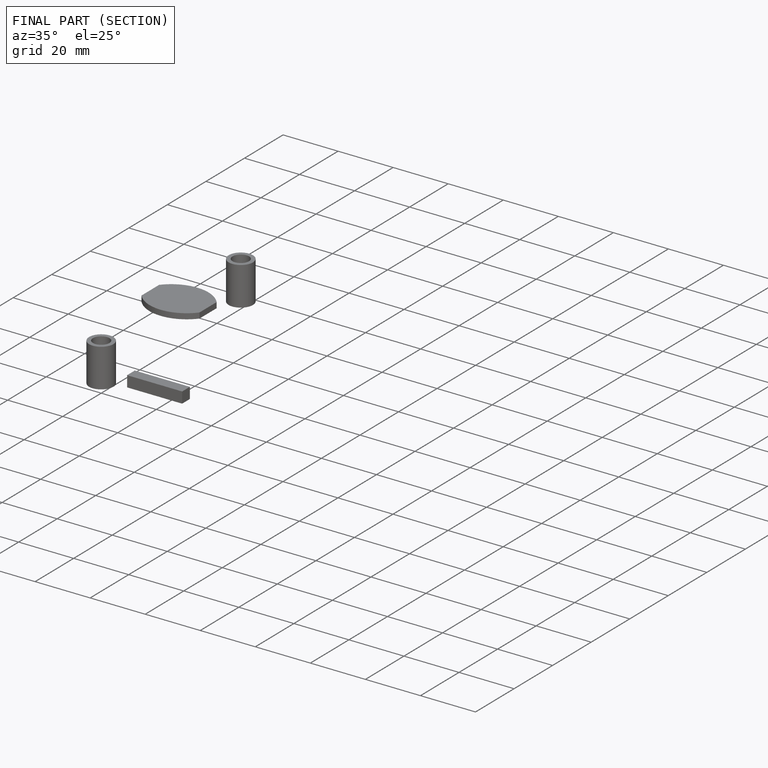
[diagram: finished part — half-section view (interior)]
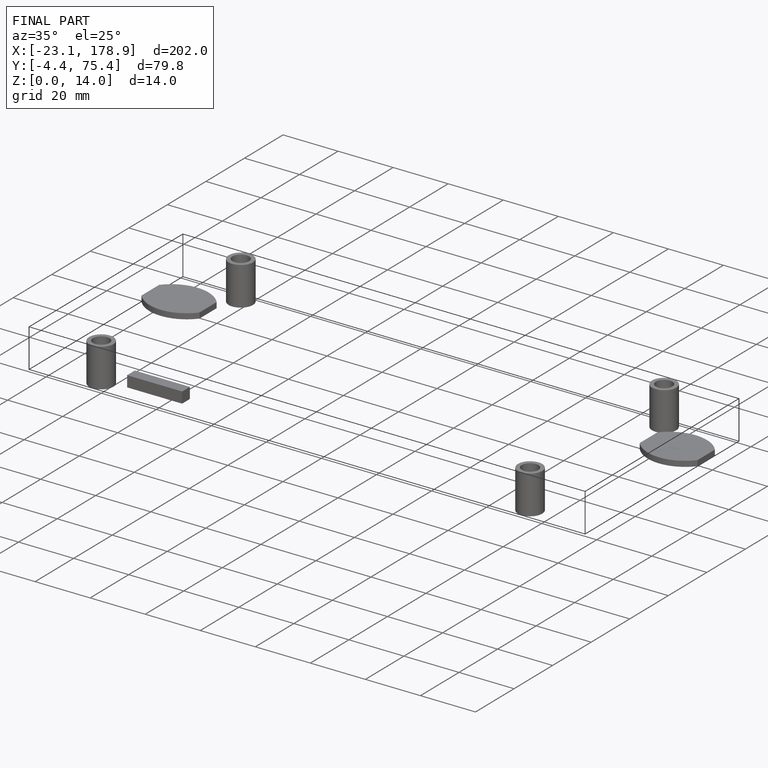
[diagram: finished part — iso view with bounding-box wireframe]
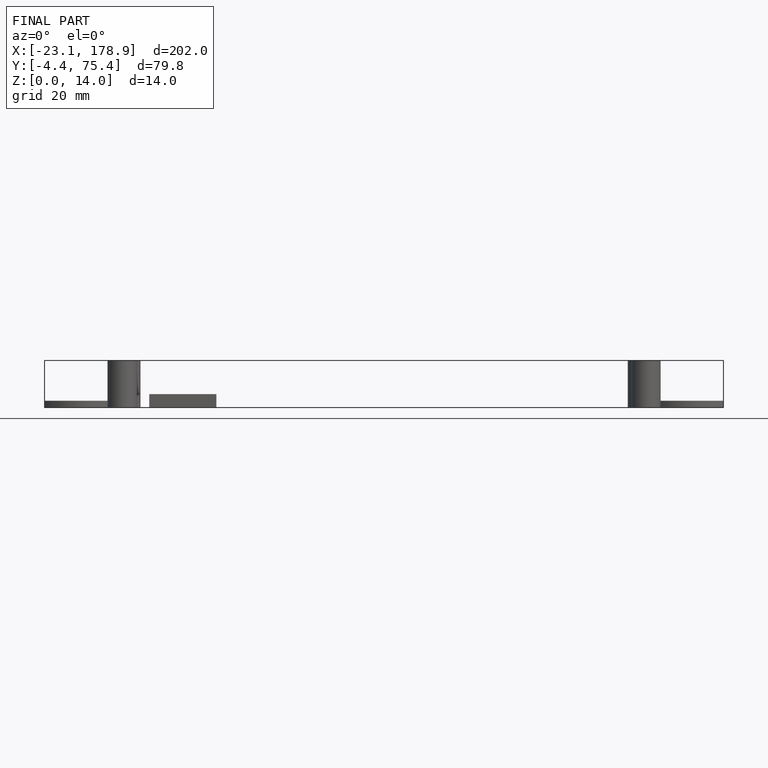
[diagram: finished part — front view with bounding-box wireframe]
